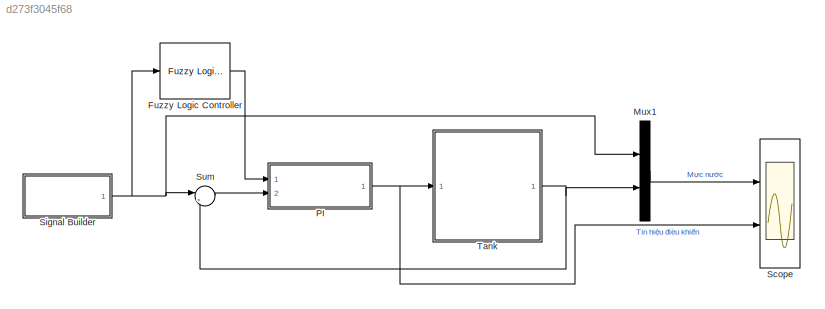
MODEL slx_d273f3045f68
KIND model
CONFIG AbsTol = auto
CONFIG EnableMultiTasking = off
CONFIG FixedStep = 0.1
CONFIG MaxStep = auto
CONFIG MinStep = auto
CONFIG RelTol = 1e-3
CONFIG SampleTimeConstraint = Unconstrained
CONFIG Solver = ode4
CONFIG SolverName = ode4
CONFIG StartTime = 0.0
CONFIG StopTime = 1500
WORKSPACE source: MAT-file member
WORKSPACE MCOS: class17 (value not decoded)
BLOCK [Reference] Fuzzy Logic Controller  REF=fuzblock/Fuzzy Logic   (lib defined in mdl_858b3b3e7478)
Controller
  Ports = [1, 1]
  SourceBlock = fuzblock/Fuzzy Logic \nController
  SourceProductBaseCode = FL
  SourceProductName = Fuzzy Logic Toolbox
  SourceType = Fuzzy Inference System
BLOCK [Mux] Mux1
  DisplayOption = bar
  Inputs = 2
  Ports = [2, 1]
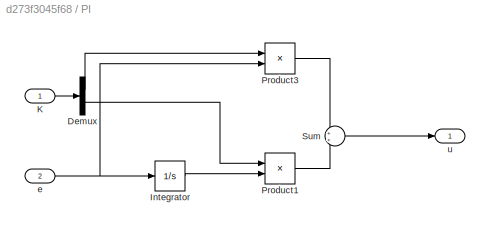
BLOCK [SubSystem] PI
  Ports = [2, 1]
  RequestExecContextInheritance = off
BLOCK [Demux] PI/Demux
  DisplayOption = bar
  Outputs = 2
  Ports = [1, 2]
BLOCK [Integrator] PI/Integrator
  Ports = [1, 1]
BLOCK [Inport] PI/K
  IconDisplay = Port number
BLOCK [Product] PI/Product1
  InputSameDT = off
  OutDataTypeStr = Inherit: Inherit via internal rule
  Ports = [2, 1]
  RndMeth = Floor
  SaturateOnIntegerOverflow = off
BLOCK [Product] PI/Product3
  InputSameDT = off
  OutDataTypeStr = Inherit: Inherit via internal rule
  Ports = [2, 1]
  RndMeth = Floor
  SaturateOnIntegerOverflow = off
BLOCK [Sum] PI/Sum
  IconShape = round
  InputSameDT = off
  OutDataTypeStr = Inherit: Inherit via internal rule
  Ports = [2, 1]
  SaturateOnIntegerOverflow = off
BLOCK [Inport] PI/e
  IconDisplay = Port number
  Port = 2
BLOCK [Outport] PI/u
  IconDisplay = Port number
BLOCK [Scope] Scope
  Floating = off
  NumInputPorts = 2
  Ports = [2]
  ScopeSpecificationString = Simulink.scopes.TimeScopeBlockCfg('CurrentConfiguration', extmgr.ConfigurationSet(extmgr.Configuration('Core','General UI',true,'FigureColor',[1 1 1]),extmgr.Configuration('Core','Source UI',true),extmgr.Configuration('Sources','WiredSimulink',true),extmgr.Configuration('Visuals','Time Domain',true,'SerializedDisplays',{struct('MinYLimReal','-14.00768','MaxYLimReal','113.41986','YLabelReal','','Mi...<+2336ch>
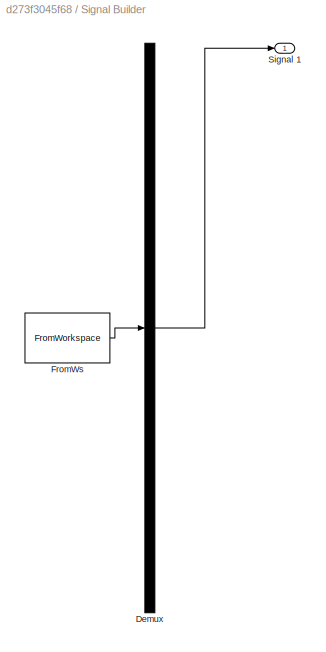
BLOCK [SubSystem] Signal Builder
  ClipboardFcn = sigbuilder_block('clipboard');
  CloseFcn = sigbuilder_block('close');
  ContinueFcn = sigbuilder_block('continue');
  CopyFcn = sigbuilder_block('copy');
  DeleteFcn = sigbuilder_block('delete');
  LoadFcn = sigbuilder_block('load');
  MaskHideContents = on
  ModelCloseFcn = sigbuilder_block('modelClose');
  NameChangeFcn = sigbuilder_block('namechange');
  OpenFcn = sigbuilder_block('open',[437.6 199.2 550.4 400 ]);
  PauseFcn = sigbuilder_block('pause');
  Ports = [0, 1]
  PreSaveFcn = sigbuilder_block('preSave');
  RequestExecContextInheritance = off
  StartFcn = sigbuilder_block('start');
  StopFcn = sigbuilder_block('stop');
  Tag = STV Subsys
BLOCK [Demux] Signal Builder/Demux
  Outputs = 1
  Ports = [1, 1]
  Tag = STV Demux
BLOCK [FromWorkspace] Signal Builder/FromWs
  SampleTime = 0
  Tag = STV FromWs
  VariableName = tuvar
  ZeroCross = on
BLOCK [Outport] Signal Builder/Signal 1
  IconDisplay = Port number
  Tag = STV Outport
BLOCK [Sum] Sum
  IconShape = round
  InputSameDT = off
  Inputs = |+-
  OutDataTypeStr = Inherit: Inherit via internal rule
  Ports = [2, 1]
  SaturateOnIntegerOverflow = off
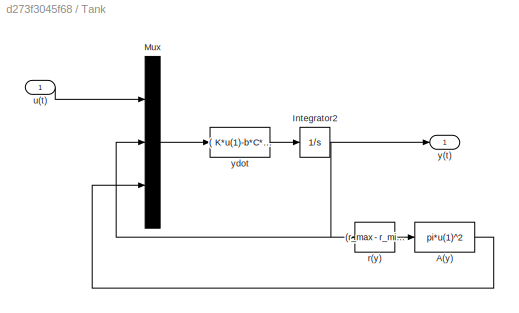
BLOCK [SubSystem] Tank
  Ports = [1, 1]
  RequestExecContextInheritance = off
BLOCK [Fcn] Tank/A(y)
  Expr = pi*u(1)^2
BLOCK [Integrator] Tank/Integrator2
  Ports = [1, 1]
BLOCK [Mux] Tank/Mux
  DisplayOption = bar
  Inputs = 3
  Ports = [3, 1]
BLOCK [Fcn] Tank/r(y)
  Expr = (r_max - r_min)*u(1)/y_max+r_min
BLOCK [Inport] Tank/u(t)
  IconDisplay = Port number
BLOCK [Outport] Tank/y(t)
  IconDisplay = Port number
BLOCK [Fcn] Tank/ydot
  Expr = ( K*u(1)-b*C*sqrt(2*g*u(2)) ) / u(3)
LINE Fuzzy Logic Controller:1 -> PI:1
LINE Mux1:1 -> Scope:1
LINE PI/Demux:1 -> PI/Product3:1
LINE PI/Demux:2 -> PI/Product1:1
LINE PI/Integrator:1 -> PI/Product1:2
LINE PI/K:1 -> PI/Demux:1
LINE PI/Product1:1 -> PI/Sum:2
LINE PI/Product3:1 -> PI/Sum:1
LINE PI/Sum:1 -> PI/u:1
NET PI/e:1 -> PI/Integrator:1, PI/Product3:2
NET PI:1 -> Scope:2, Tank:1
NET Signal Builder:1 -> Fuzzy Logic Controller:1, Mux1:1, Sum:1
LINE Sum:1 -> PI:2
LINE Tank/A(y):1 -> Tank/Mux:3
NET Tank/Integrator2:1 -> Tank/Mux:2, Tank/r(y):1, Tank/y(t):1
LINE Tank/Mux:1 -> Tank/ydot:1
LINE Tank/r(y):1 -> Tank/A(y):1
LINE Tank/u(t):1 -> Tank/Mux:1
LINE Tank/ydot:1 -> Tank/Integrator2:1
NET Tank:1 -> Mux1:2, Sum:2
note: NET lines group one-source signal fan-out (src -> all destinations, sorted); 1:1 wires keep LINE
